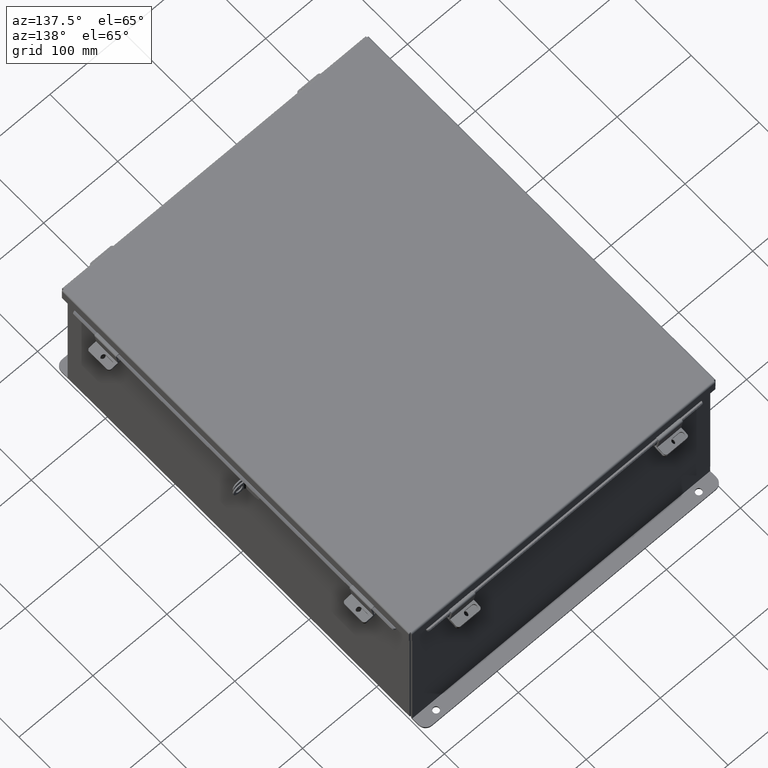
[diagram: clean part render]
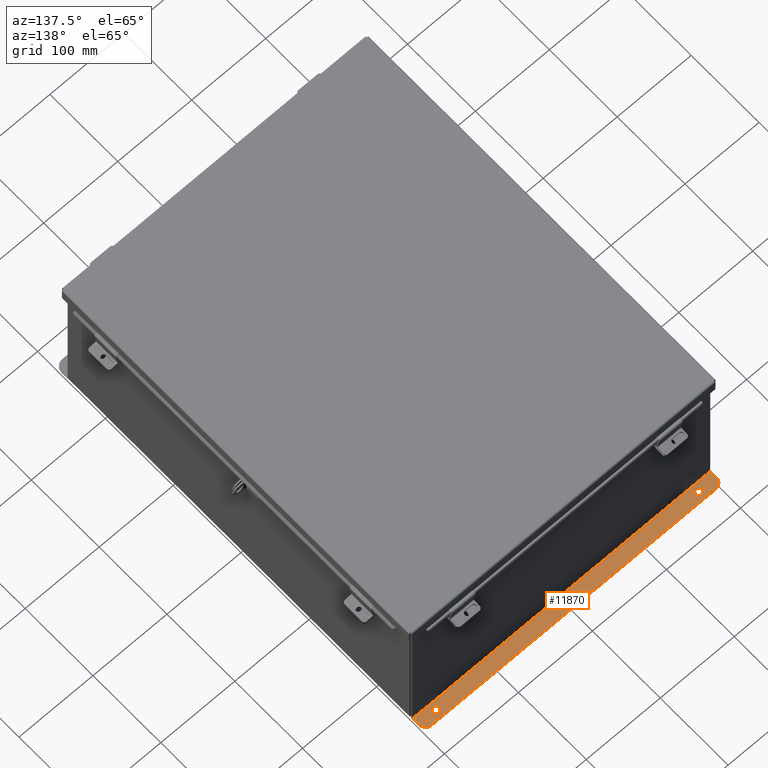
[diagram: same view with one face highlighted and labeled with its STEP entity id]
A machine part, auxiliary view. The second image highlights one B-rep face of the part: STEP entity #11870.
In plain terms, the highlighted planar face has unit normal (0, 0, 1).
Its self-contained STEP definition (entity closure, byte-faithful):
#11 = FACE_OUTER_BOUND ( 'NONE', #6603, .T. ) ;
#64 = ORIENTED_EDGE ( 'NONE', *, *, #4502, .T. ) ;
#458 = ORIENTED_EDGE ( 'NONE', *, *, #17957, .F. ) ;
#490 = EDGE_CURVE ( 'NONE', #6068, #8239, #2937, .T. ) ;
#510 = ORIENTED_EDGE ( 'NONE', *, *, #12536, .F. ) ;
#607 = DIRECTION ( 'NONE',  ( -0.0000000000000000000, -3.702694488566362300E-015, -1.000000000000000000 ) ) ;
#1390 = CARTESIAN_POINT ( 'NONE',  ( 7.925300000000000900, 0.01300000000000010700, -4.112300000000000300 ) ) ;
#1417 = CARTESIAN_POINT ( 'NONE',  ( -7.925299999999998200, 0.01300000000000010700, -4.112300000000000300 ) ) ;
#1872 = ORIENTED_EDGE ( 'NONE', *, *, #12872, .F. ) ;
#2641 = ORIENTED_EDGE ( 'NONE', *, *, #12569, .F. ) ;
#2662 = VERTEX_POINT ( 'NONE', #8231 ) ;
#2710 = LINE ( 'NONE', #19565, #7227 ) ;
#2929 = DIRECTION ( 'NONE',  ( 0.0000000000000000000, -1.000000000000000000, 3.502369222646487400E-015 ) ) ;
#2937 = CIRCLE ( 'NONE', #10392, 0.3750000000000000600 ) ;
#2990 = VERTEX_POINT ( 'NONE', #9972 ) ;
#3010 = DIRECTION ( 'NONE',  ( -0.0000000000000000000, -3.702694488566362300E-015, -1.000000000000000000 ) ) ;
#3301 = CARTESIAN_POINT ( 'NONE',  ( 6.987800000000000900, 0.3628000000000008400, -4.112300000000001200 ) ) ;
#3751 = DIRECTION ( 'NONE',  ( 0.0000000000000000000, -1.000000000000000000, 3.502369222646487400E-015 ) ) ;
#3755 = LINE ( 'NONE', #20057, #16956 ) ;
#3849 = CIRCLE ( 'NONE', #20956, 0.1560000000000001700 ) ;
#4035 = CARTESIAN_POINT ( 'NONE',  ( -7.550299999999998200, 0.3628000000000008400, -4.112300000000001200 ) ) ;
#4272 = LINE ( 'NONE', #14338, #22152 ) ;
#4502 = EDGE_CURVE ( 'NONE', #7961, #21468, #14434, .T. ) ;
#5067 = DIRECTION ( 'NONE',  ( -1.000000000000000000, -3.446996320220387800E-017, 1.276317427698856100E-031 ) ) ;
#5138 = AXIS2_PLACEMENT_3D ( 'NONE', #18978, #18947, #22062 ) ;
#5252 = VERTEX_POINT ( 'NONE', #9522 ) ;
#5550 = EDGE_CURVE ( 'NONE', #5252, #2990, #19571, .T. ) ;
#6068 = VERTEX_POINT ( 'NONE', #12087 ) ;
#6213 = ORIENTED_EDGE ( 'NONE', *, *, #5550, .T. ) ;
#6603 = EDGE_LOOP ( 'NONE', ( #2641, #6213, #1872, #14961, #510, #458 ) ) ;
#6754 = DIRECTION ( 'NONE',  ( 0.0000000000000000000, -1.000000000000000000, 4.370956789862820400E-015 ) ) ;
#7227 = VECTOR ( 'NONE', #19669, 39.37007874015748100 ) ;
#7758 = EDGE_LOOP ( 'NONE', ( #9195, #13618 ) ) ;
#7961 = VERTEX_POINT ( 'NONE', #8269 ) ;
#8231 = CARTESIAN_POINT ( 'NONE',  ( -6.987799999999999100, 0.5188000000000010400, -4.112300000000002100 ) ) ;
#8239 = VERTEX_POINT ( 'NONE', #18042 ) ;
#8269 = CARTESIAN_POINT ( 'NONE',  ( 6.987800000000000900, 0.5188000000000010400, -4.112300000000002100 ) ) ;
#8734 = VECTOR ( 'NONE', #5067, 39.37007874015748100 ) ;
#9195 = ORIENTED_EDGE ( 'NONE', *, *, #19886, .T. ) ;
#9522 = CARTESIAN_POINT ( 'NONE',  ( 7.925300000000000900, 0.3628000000000008400, -4.112300000000001200 ) ) ;
#9817 = CARTESIAN_POINT ( 'NONE',  ( 7.925300000000000900, 0.01300000000000010700, -4.112300000000000300 ) ) ;
#9822 = EDGE_CURVE ( 'NONE', #21468, #7961, #3849, .T. ) ;
#9972 = CARTESIAN_POINT ( 'NONE',  ( 7.550300000000000900, 0.7378000000000011200, -4.112300000000003000 ) ) ;
#10392 = AXIS2_PLACEMENT_3D ( 'NONE', #4035, #10934, #6754 ) ;
#10881 = CARTESIAN_POINT ( 'NONE',  ( -6.987799999999999100, 0.3628000000000008400, -4.112300000000001200 ) ) ;
#10934 = DIRECTION ( 'NONE',  ( 0.0000000000000000000, 3.702694488566362300E-015, 1.000000000000000000 ) ) ;
#11870 = ADVANCED_FACE ( 'NONE', ( #18904, #14299, #11 ), #13462, .T. ) ;
#12087 = CARTESIAN_POINT ( 'NONE',  ( -7.550299999999998200, 0.7378000000000011200, -4.112300000000003000 ) ) ;
#12215 = DIRECTION ( 'NONE',  ( 0.0000000000000000000, -1.000000000000000000, 3.502369222646487400E-015 ) ) ;
#12246 = DIRECTION ( 'NONE',  ( -0.0000000000000000000, -3.702694488566362300E-015, -1.000000000000000000 ) ) ;
#12288 = CARTESIAN_POINT ( 'NONE',  ( -6.987799999999999100, 0.3628000000000008400, -4.112300000000001200 ) ) ;
#12536 = EDGE_CURVE ( 'NONE', #17357, #8239, #3755, .T. ) ;
#12569 = EDGE_CURVE ( 'NONE', #5252, #21894, #2710, .T. ) ;
#12616 = DIRECTION ( 'NONE',  ( 0.0000000000000000000, -1.000000000000000000, 3.502369222646487400E-015 ) ) ;
#12872 = EDGE_CURVE ( 'NONE', #6068, #2990, #4272, .T. ) ;
#13054 = EDGE_CURVE ( 'NONE', #15294, #2662, #14768, .T. ) ;
#13321 = LINE ( 'NONE', #1390, #8734 ) ;
#13462 = PLANE ( 'NONE',  #5138 ) ;
#13618 = ORIENTED_EDGE ( 'NONE', *, *, #13054, .T. ) ;
#14150 = DIRECTION ( 'NONE',  ( 1.000000000000000000, -0.0000000000000000000, -0.0000000000000000000 ) ) ;
#14299 = FACE_BOUND ( 'NONE', #18938, .T. ) ;
#14338 = CARTESIAN_POINT ( 'NONE',  ( 7.925300000000000900, 0.7378000000000011200, -4.112300000000003000 ) ) ;
#14360 = CARTESIAN_POINT ( 'NONE',  ( 7.550300000000000900, 0.3628000000000008400, -4.112300000000001200 ) ) ;
#14434 = CIRCLE ( 'NONE', #21653, 0.1560000000000001700 ) ;
#14768 = CIRCLE ( 'NONE', #19598, 0.1560000000000001700 ) ;
#14961 = ORIENTED_EDGE ( 'NONE', *, *, #490, .T. ) ;
#15294 = VERTEX_POINT ( 'NONE', #21515 ) ;
#15550 = DIRECTION ( 'NONE',  ( 0.0000000000000000000, -1.000000000000000000, 4.370956789862820400E-015 ) ) ;
#15579 = AXIS2_PLACEMENT_3D ( 'NONE', #14360, #16772, #15550 ) ;
#16772 = DIRECTION ( 'NONE',  ( 0.0000000000000000000, 3.702694488566362300E-015, 1.000000000000000000 ) ) ;
#16956 = VECTOR ( 'NONE', #20079, 39.37007874015748100 ) ;
#17016 = CIRCLE ( 'NONE', #19200, 0.1560000000000001700 ) ;
#17357 = VERTEX_POINT ( 'NONE', #1417 ) ;
#17957 = EDGE_CURVE ( 'NONE', #21894, #17357, #13321, .T. ) ;
#18042 = CARTESIAN_POINT ( 'NONE',  ( -7.925299999999998200, 0.3628000000000008400, -4.112300000000001200 ) ) ;
#18461 = DIRECTION ( 'NONE',  ( -0.0000000000000000000, -3.702694488566362300E-015, -1.000000000000000000 ) ) ;
#18904 = FACE_BOUND ( 'NONE', #7758, .T. ) ;
#18938 = EDGE_LOOP ( 'NONE', ( #64, #22370 ) ) ;
#18947 = DIRECTION ( 'NONE',  ( 0.0000000000000000000, 3.702694488566362300E-015, 1.000000000000000000 ) ) ;
#18978 = CARTESIAN_POINT ( 'NONE',  ( 0.0000000000000000000, -1.529834876451987200E-014, -4.112300000000000300 ) ) ;
#19200 = AXIS2_PLACEMENT_3D ( 'NONE', #10881, #607, #12616 ) ;
#19565 = CARTESIAN_POINT ( 'NONE',  ( 7.925300000000000900, 0.0000000000000000000, -4.112300000000000300 ) ) ;
#19571 = CIRCLE ( 'NONE', #15579, 0.3750000000000000600 ) ;
#19598 = AXIS2_PLACEMENT_3D ( 'NONE', #12288, #12246, #12215 ) ;
#19669 = DIRECTION ( 'NONE',  ( -0.0000000000000000000, -1.000000000000000000, 3.702694488566362300E-015 ) ) ;
#19886 = EDGE_CURVE ( 'NONE', #2662, #15294, #17016, .T. ) ;
#20057 = CARTESIAN_POINT ( 'NONE',  ( -7.925299999999998200, 0.7378000000000011200, -4.112300000000003000 ) ) ;
#20079 = DIRECTION ( 'NONE',  ( -0.0000000000000000000, 1.000000000000000000, -3.702694488566362300E-015 ) ) ;
#20884 = CARTESIAN_POINT ( 'NONE',  ( 6.987800000000000900, 0.2068000000000006800, -4.112300000000001200 ) ) ;
#20956 = AXIS2_PLACEMENT_3D ( 'NONE', #3301, #3010, #2929 ) ;
#21370 = CARTESIAN_POINT ( 'NONE',  ( 6.987800000000000900, 0.3628000000000008400, -4.112300000000001200 ) ) ;
#21468 = VERTEX_POINT ( 'NONE', #20884 ) ;
#21515 = CARTESIAN_POINT ( 'NONE',  ( -6.987799999999999100, 0.2068000000000006800, -4.112300000000001200 ) ) ;
#21653 = AXIS2_PLACEMENT_3D ( 'NONE', #21370, #18461, #3751 ) ;
#21894 = VERTEX_POINT ( 'NONE', #9817 ) ;
#22062 = DIRECTION ( 'NONE',  ( 0.0000000000000000000, -1.000000000000000000, 3.702694488566362300E-015 ) ) ;
#22152 = VECTOR ( 'NONE', #14150, 39.37007874015748100 ) ;
#22370 = ORIENTED_EDGE ( 'NONE', *, *, #9822, .T. ) ;